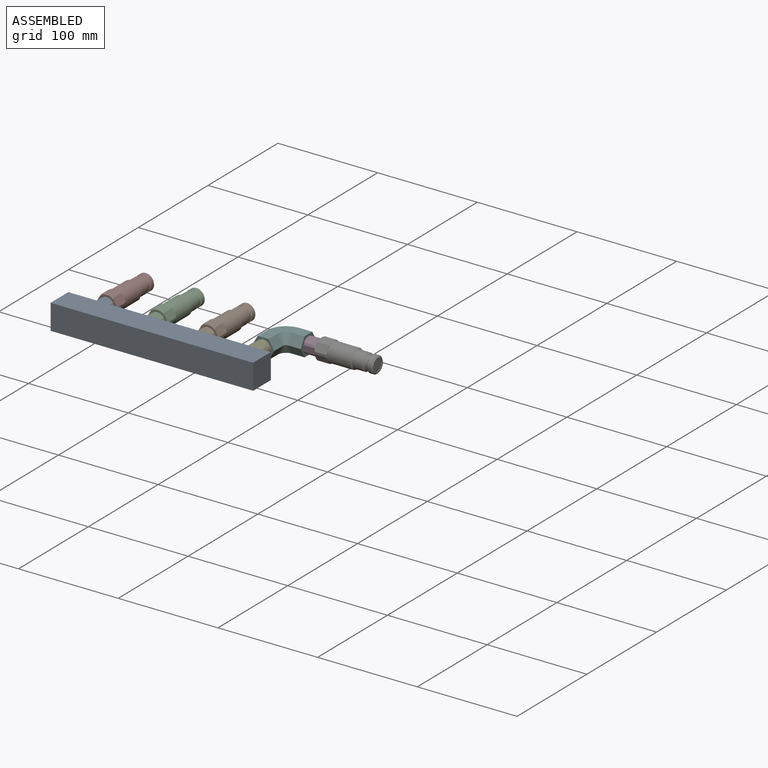
[diagram: assembled view]
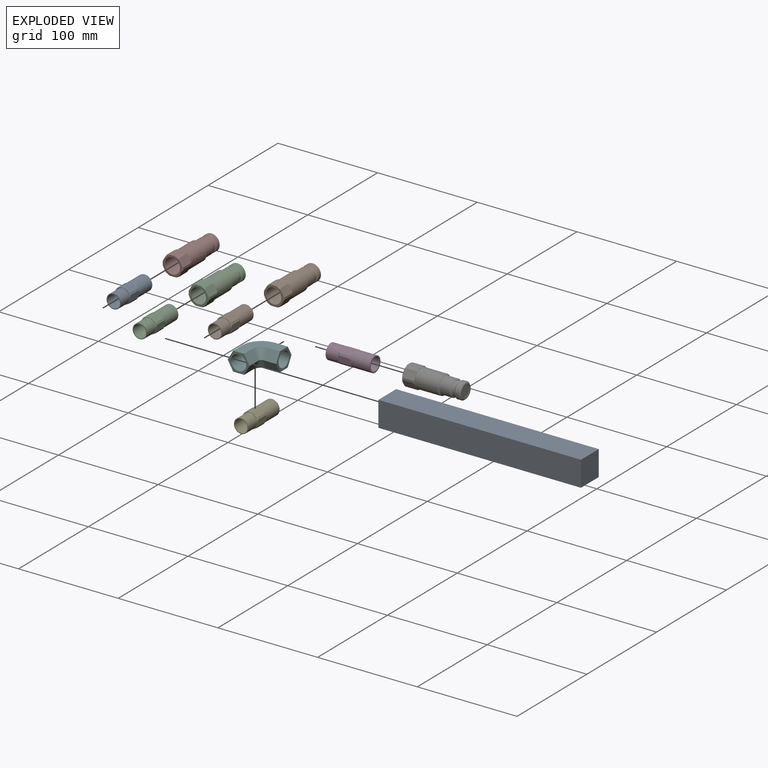
[diagram: exploded view]
GUIDED TOUR — MATED ASSEMBLY (Onshape document 58734178e3815217dc91f460, AutoMate assembly 58734178e3815217dc91f460_f798ebabe00ff8d9d65b1478_e7b1286801b83e364d495348_default)

This assembly has 11 components, labeled P0..P10 below (a component is one placed occurrence of a part; the same part can appear more than once), held together by 10 mates. A mate is a constraint between two components; its type names the relative motion it leaves free:
  FASTENED — locks the two components together rigidly (no relative motion).
Axis/direction vectors are unit vectors and 'through' points are millimeter coordinates, both in the assembly's world frame.

MATES
  1. FASTENED "Fastened 5": P2 <-> P10, direction (0.000, -1.000, 0.000) through (-95.49, 54.52, 36.64) mm
  2. FASTENED "Fastened 10": P6 <-> P3, direction (-1.000, 0.001, 0.000) through (64.54, 68.46, 36.64) mm
  3. FASTENED "Fastened 4": P1 <-> P9, direction (0.000, -1.000, 0.000) through (-44.69, 54.52, 36.64) mm
  4. FASTENED "Fastened 9": P3 <-> P5, direction (-1.000, 0.001, 0.000) through (20.09, 68.49, 36.64) mm
  5. FASTENED "Fastened 2": P10 <-> P8, direction (0.000, -1.000, 0.000) through (-95.49, 10.07, 36.64) mm
  6. FASTENED "Fastened 1": P0 <-> P8, direction (0.000, -1.000, 0.000) through (-146.29, 10.07, 36.64) mm
  7. FASTENED "Fastened 7": P8 <-> P4, direction (0.000, 1.000, 0.000) through (6.11, 10.07, 36.64) mm
  8. FASTENED "Fastened 3": P9 <-> P8, direction (0.000, -1.000, 0.000) through (-44.69, 10.07, 36.64) mm
  9. FASTENED "Fastened 8": P5 <-> P4, direction (0.000, -1.000, 0.000) through (6.11, 54.52, 36.64) mm
  10. FASTENED "Fastened 6": P7 <-> P0, direction (0.000, -1.000, 0.000) through (-146.29, 54.52, 36.64) mm

ASSEMBLY ORDER
  1. P10 — the base component [order heuristic]
  2. P0 — core [order heuristic]
  3. P9 — core [order heuristic]
  4. P1 — core [order heuristic]
  5. P2 — core [order heuristic]
  6. P7 — core [order heuristic]
  7. P3 — core [order heuristic]
  8. P5 [order verified]
  9. P6 — core [order heuristic]
  10. P4 [order verified]
  11. P8 [order verified]
Order-tag legend:
  [order verified] — this step's position reverses a verified removal order: the component was checked to insert without passing through the ones already placed.
  [order heuristic] — the first 8 components form the assembly's core: parts whose collision-free extraction could not be verified, listed in mate-graph order.

Of the 11 components, 1 carries the full construction recipe — the FeatureScript program that regenerates the part's solid from scratch; the rest are supplied as boundary geometry only.
Each toured component is shown spotlighted twice — in the assembled view, then in the exploded view, where a leader line traces a displaced component back to its assembled socket (saturated green if recipe-attached, orange if geometry-only; every other component desaturated gray) — followed by its recipe or geometry summary and the mates that hold it.
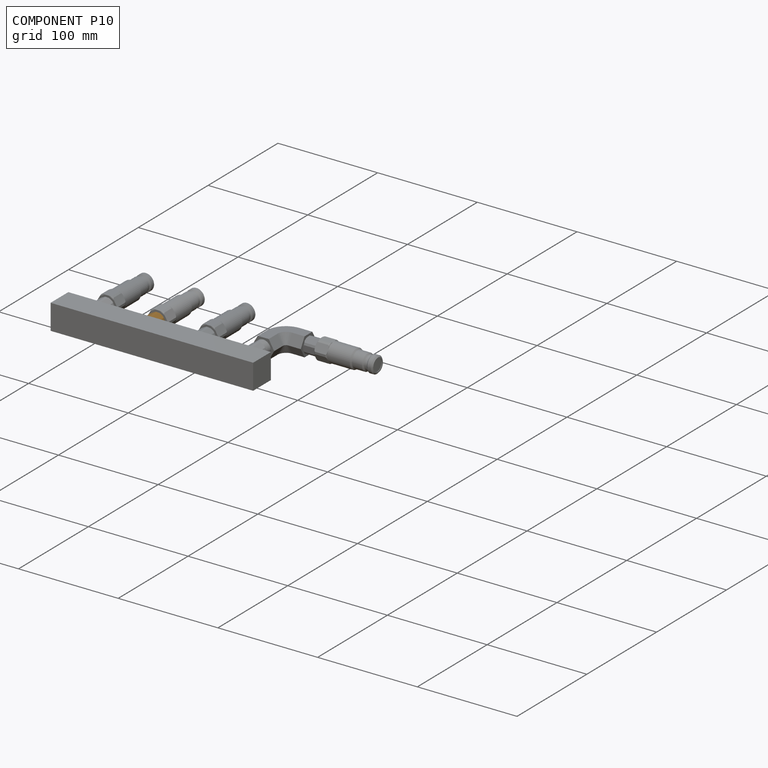
[diagram: component P10 — assembled]
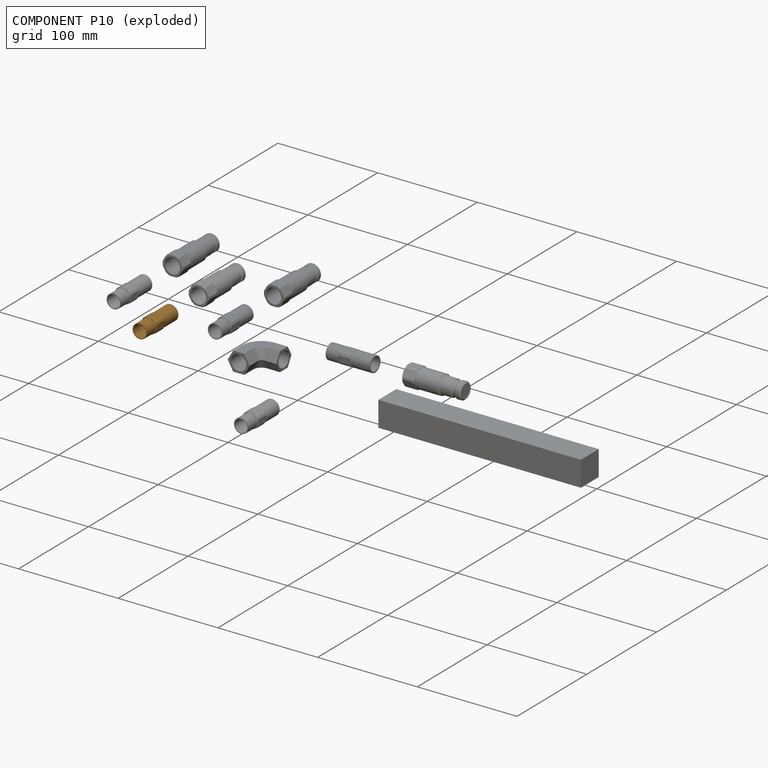
[diagram: component P10 — exploded]
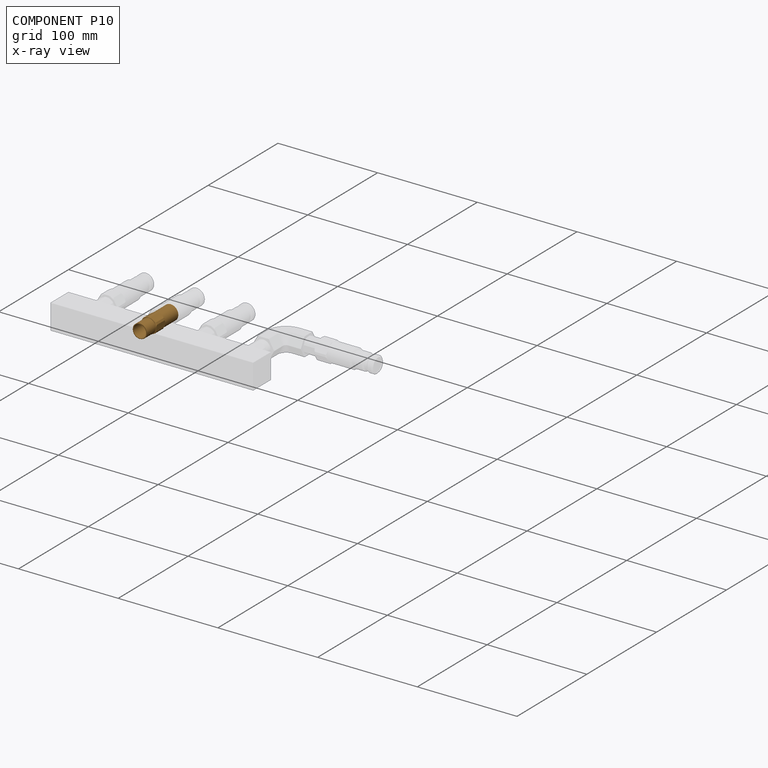
[diagram: component P10 — x-ray view]
COMPONENT P10 — geometry summary (no construction recipe available for this part):
  bounding box: 44.5 x 17.6 x 16.7 mm
  B-rep topology: 1 solid, 53 faces, 272 edges
  volume: 2369 mm^3 (18% of its bounding box)
  symmetry: 6-fold rotationally symmetric about the y axis
Held by: FASTENED mate "Fastened 5" to P2; FASTENED mate "Fastened 2" to P8.
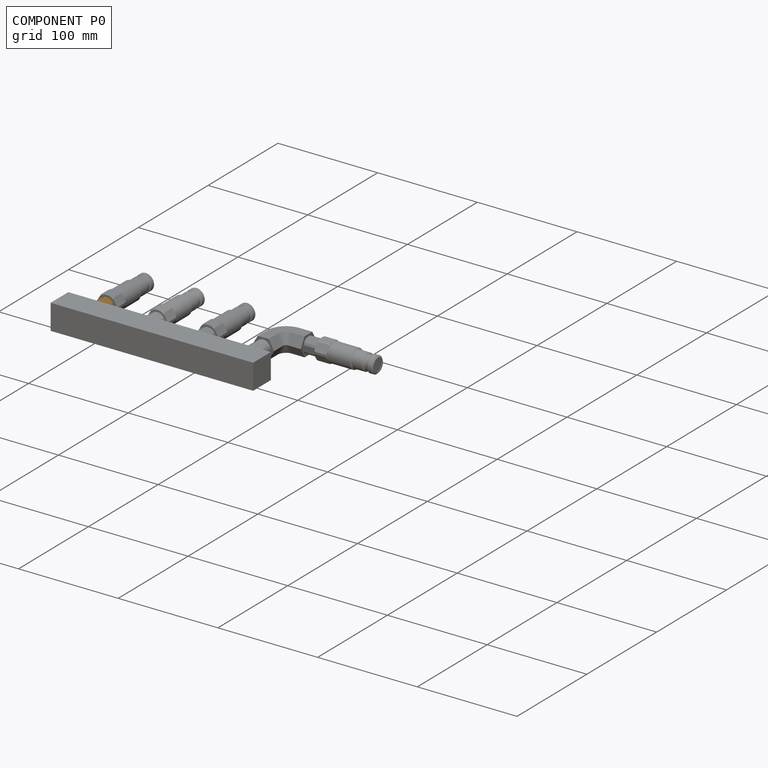
[diagram: component P0 — assembled]
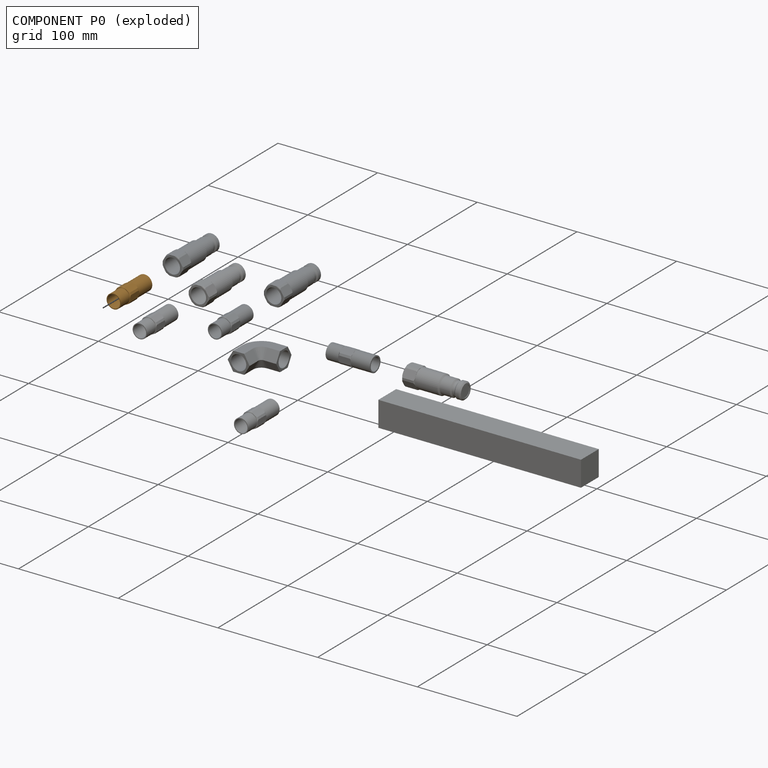
[diagram: component P0 — exploded]
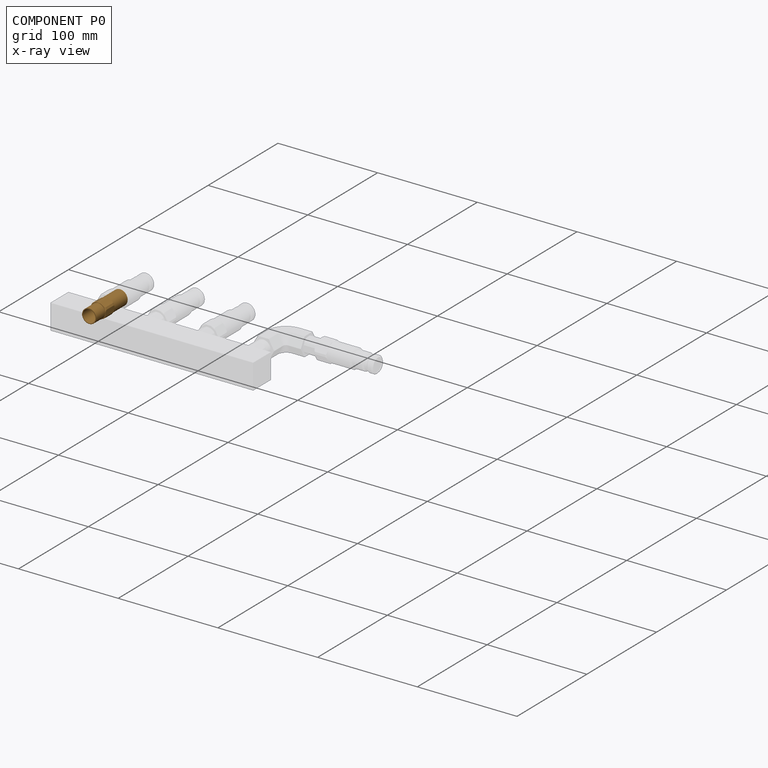
[diagram: component P0 — x-ray view]
COMPONENT P0 — geometry summary (no construction recipe available for this part):
  bounding box: 44.5 x 17.6 x 16.7 mm
  B-rep topology: 1 solid, 53 faces, 272 edges
  volume: 2369 mm^3 (18% of its bounding box)
  symmetry: 6-fold rotationally symmetric about the y axis
Held by: FASTENED mate "Fastened 1" to P8; FASTENED mate "Fastened 6" to P7.
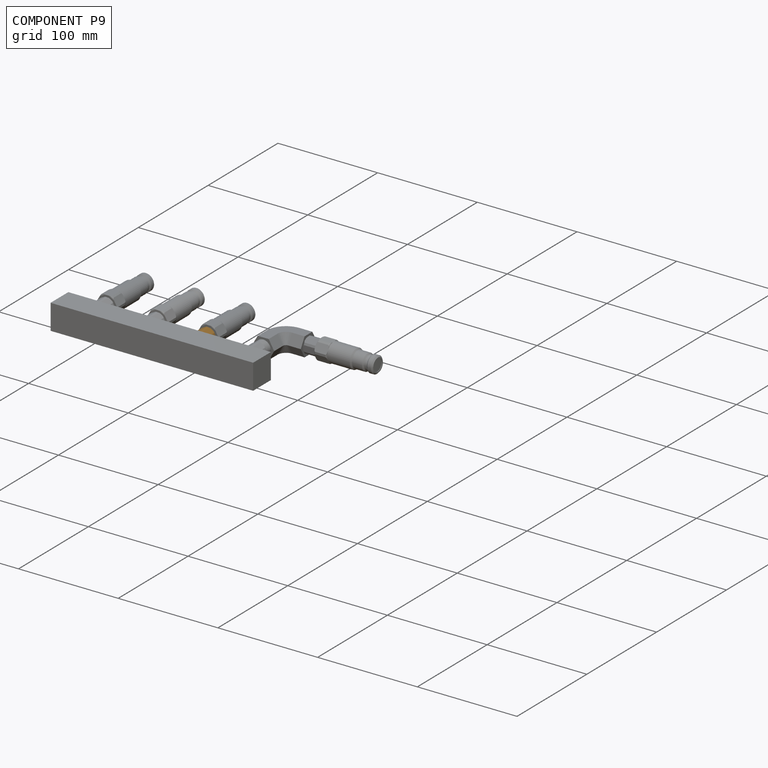
[diagram: component P9 — assembled]
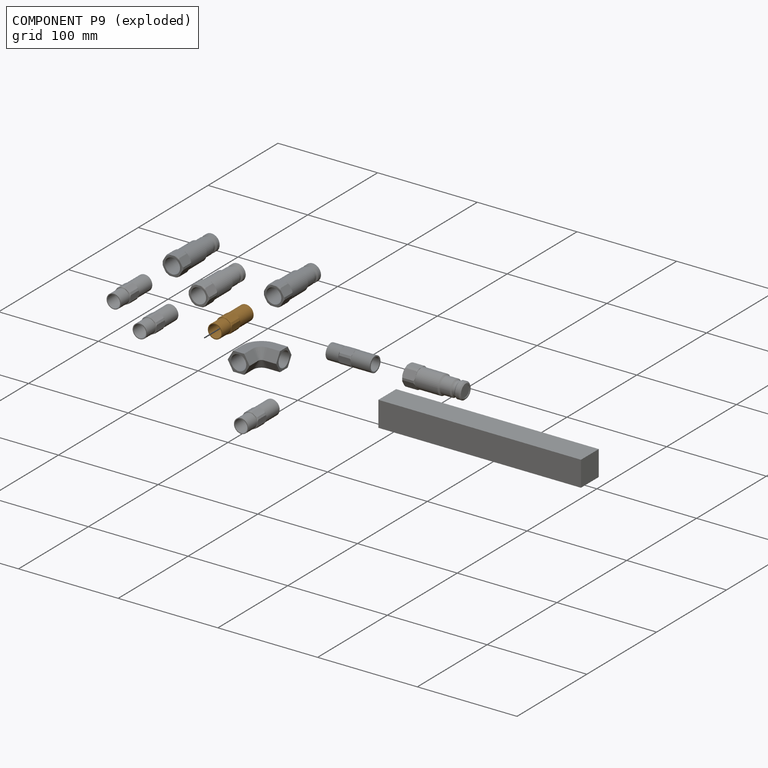
[diagram: component P9 — exploded]
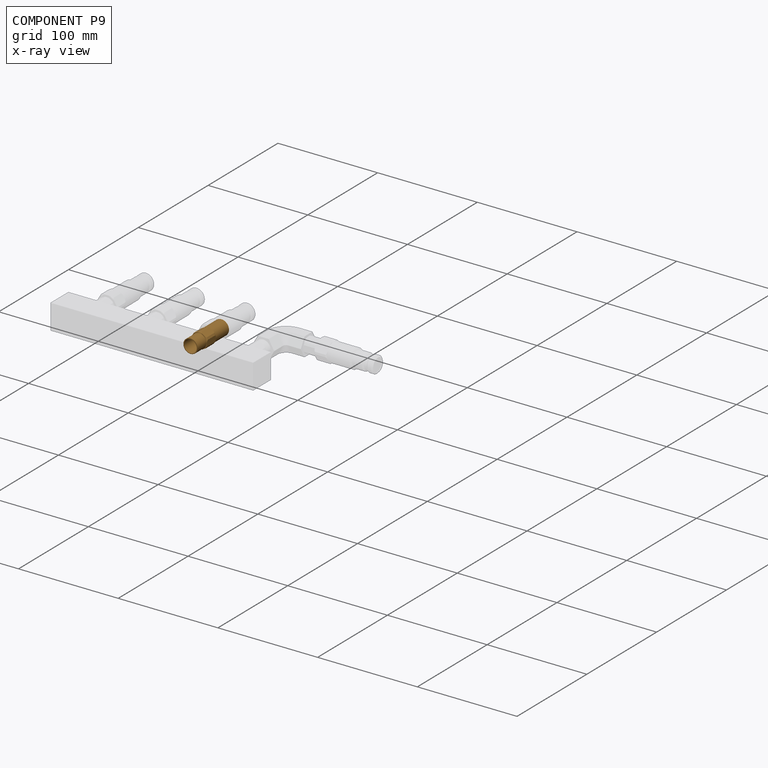
[diagram: component P9 — x-ray view]
COMPONENT P9 — geometry summary (no construction recipe available for this part):
  bounding box: 44.5 x 17.6 x 16.7 mm
  B-rep topology: 1 solid, 53 faces, 272 edges
  volume: 2369 mm^3 (18% of its bounding box)
  symmetry: 6-fold rotationally symmetric about the y axis
Held by: FASTENED mate "Fastened 4" to P1; FASTENED mate "Fastened 3" to P8.
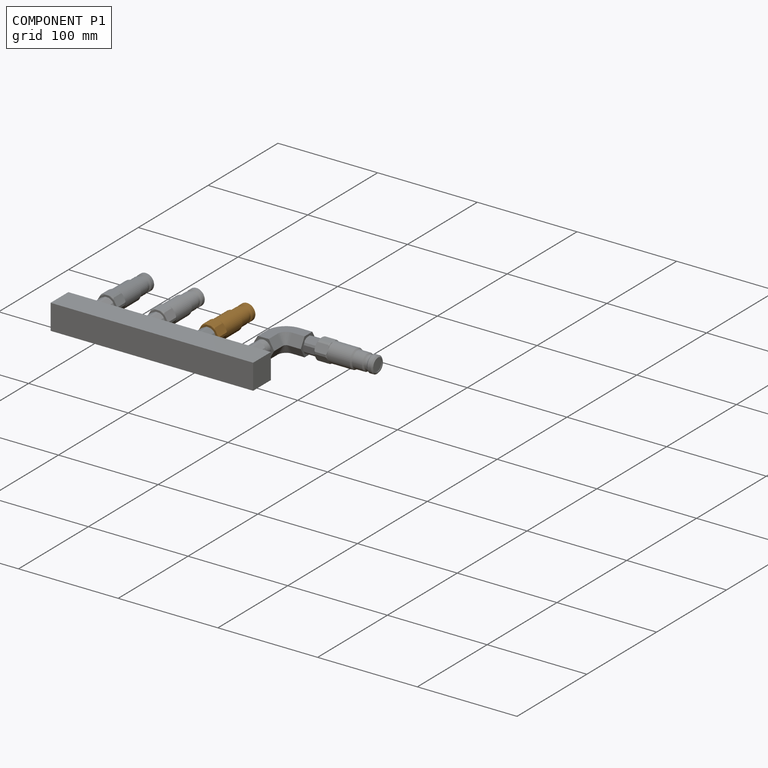
[diagram: component P1 — assembled]
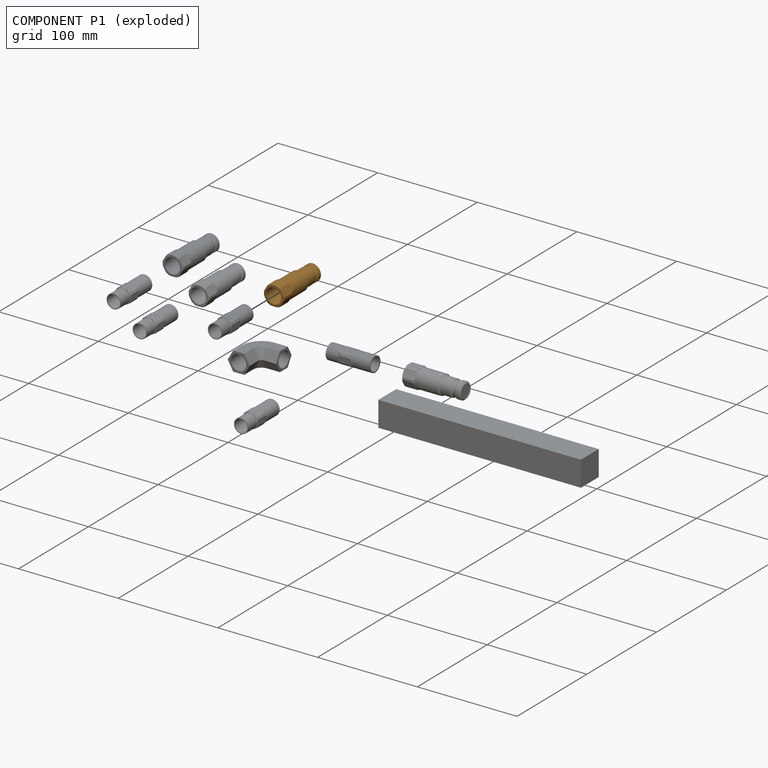
[diagram: component P1 — exploded]
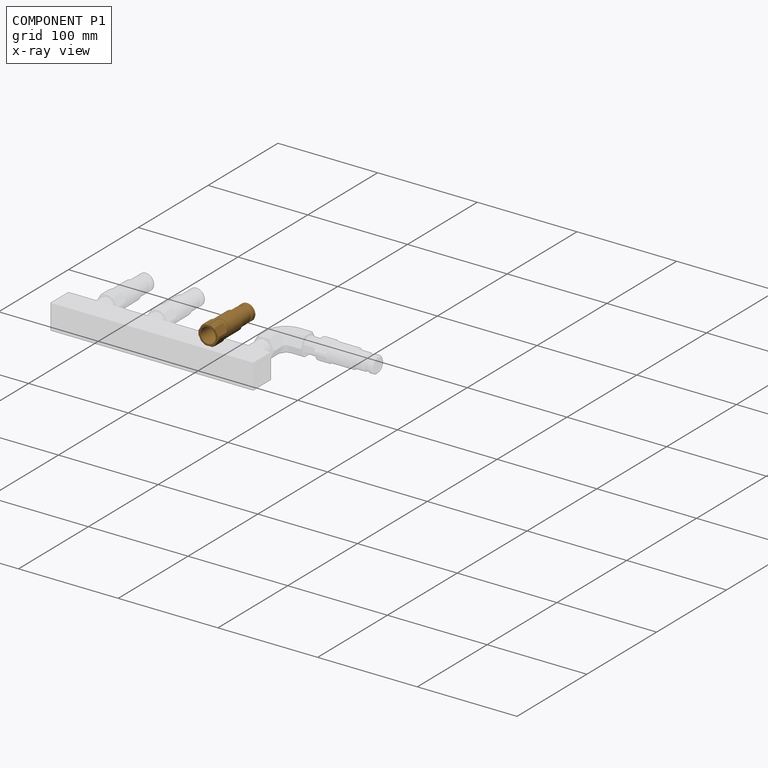
[diagram: component P1 — x-ray view]
COMPONENT P1 — geometry summary (no construction recipe available for this part):
  bounding box: 57.2 x 21.2 x 20.7 mm
  B-rep topology: 1 solid, 50 faces, 256 edges
  volume: 11306 mm^3 (45% of its bounding box)
  symmetry: 6-fold rotationally symmetric about the y axis; mirror-symmetric across its x mid-plane, z mid-plane
Held by: FASTENED mate "Fastened 4" to P9.
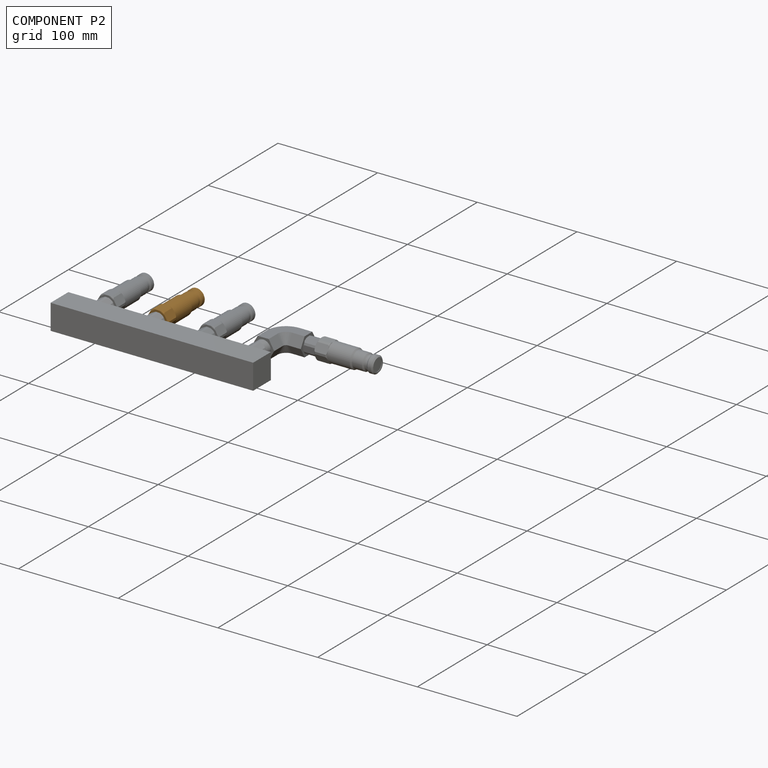
[diagram: component P2 — assembled]
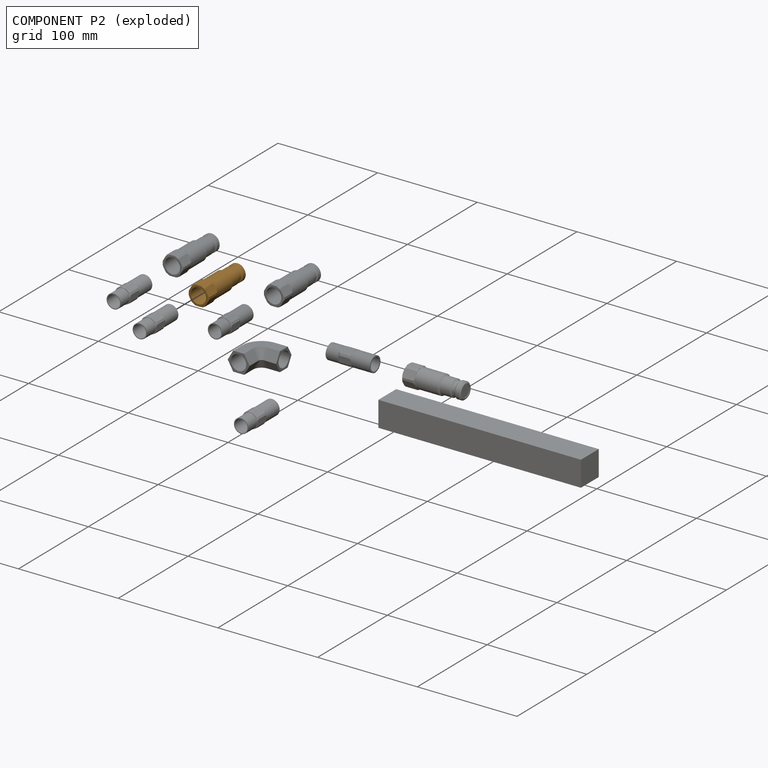
[diagram: component P2 — exploded]
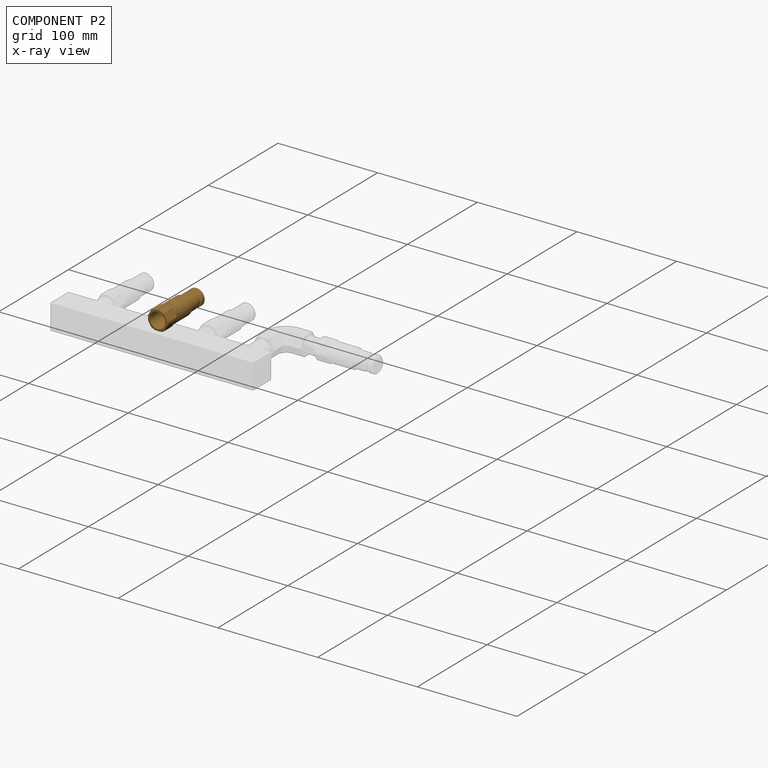
[diagram: component P2 — x-ray view]
COMPONENT P2 — geometry summary (no construction recipe available for this part):
  bounding box: 57.2 x 21.2 x 20.7 mm
  B-rep topology: 1 solid, 50 faces, 256 edges
  volume: 11306 mm^3 (45% of its bounding box)
  symmetry: 6-fold rotationally symmetric about the y axis; mirror-symmetric across its x mid-plane, z mid-plane
Held by: FASTENED mate "Fastened 5" to P10.
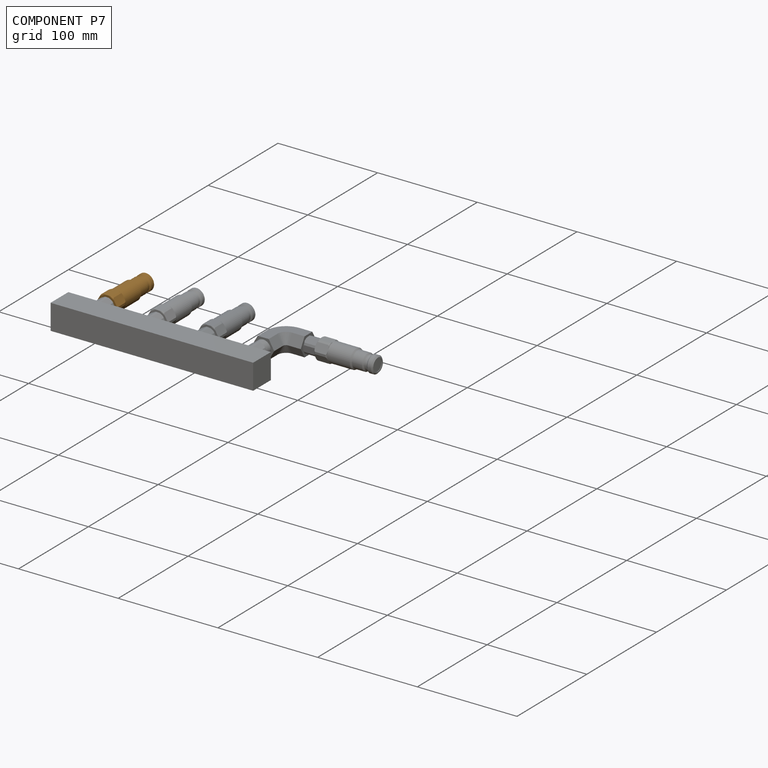
[diagram: component P7 — assembled]
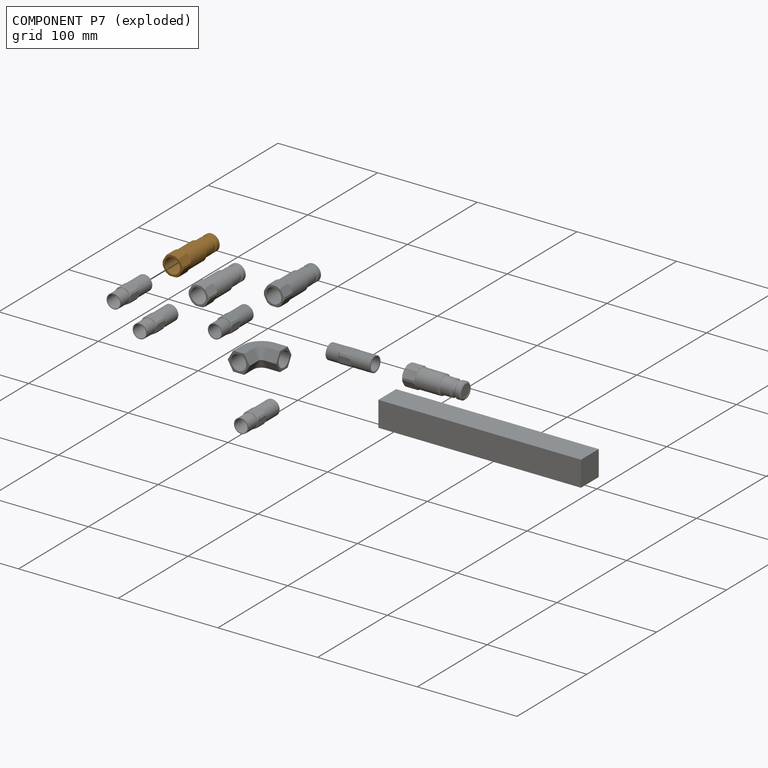
[diagram: component P7 — exploded]
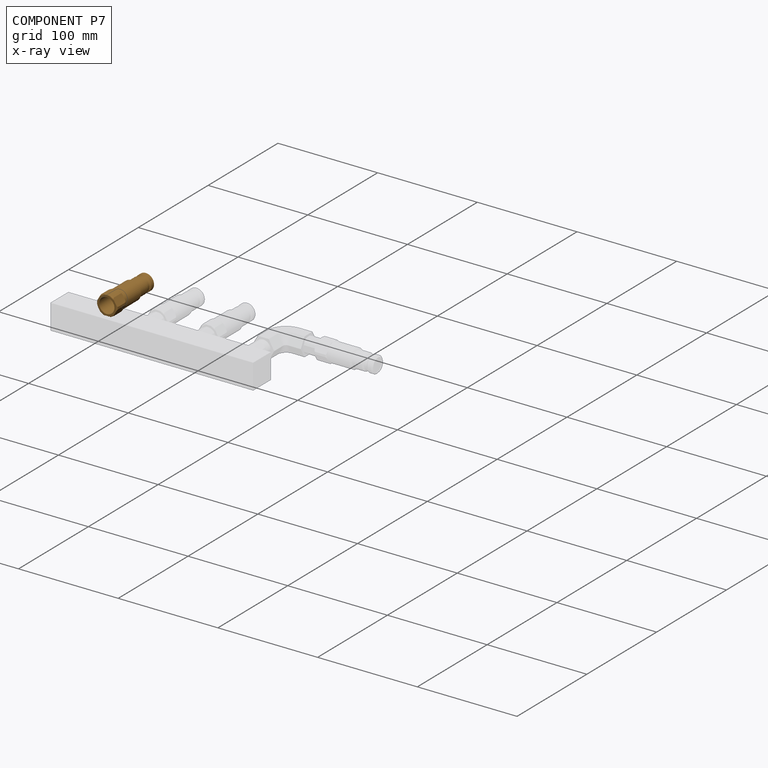
[diagram: component P7 — x-ray view]
COMPONENT P7 — geometry summary (no construction recipe available for this part):
  bounding box: 57.2 x 21.2 x 20.7 mm
  B-rep topology: 1 solid, 50 faces, 256 edges
  volume: 11306 mm^3 (45% of its bounding box)
  symmetry: 6-fold rotationally symmetric about the y axis; mirror-symmetric across its x mid-plane, z mid-plane
Held by: FASTENED mate "Fastened 6" to P0.
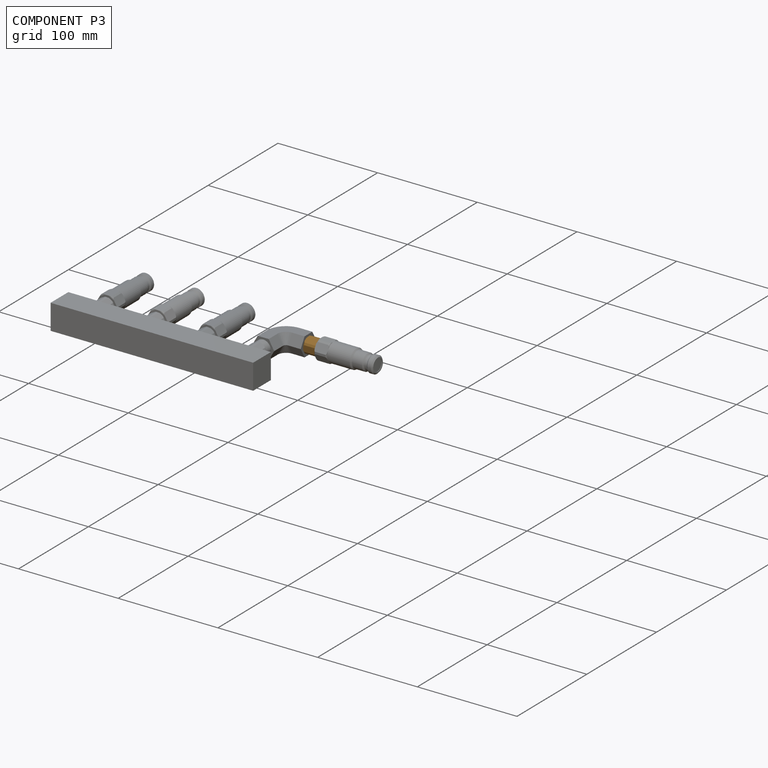
[diagram: component P3 — assembled]
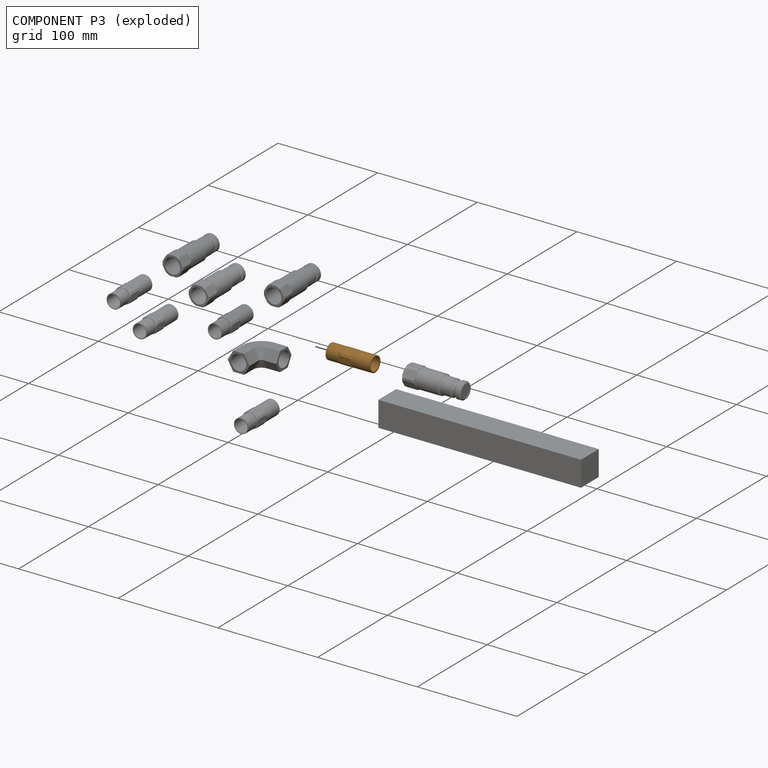
[diagram: component P3 — exploded]
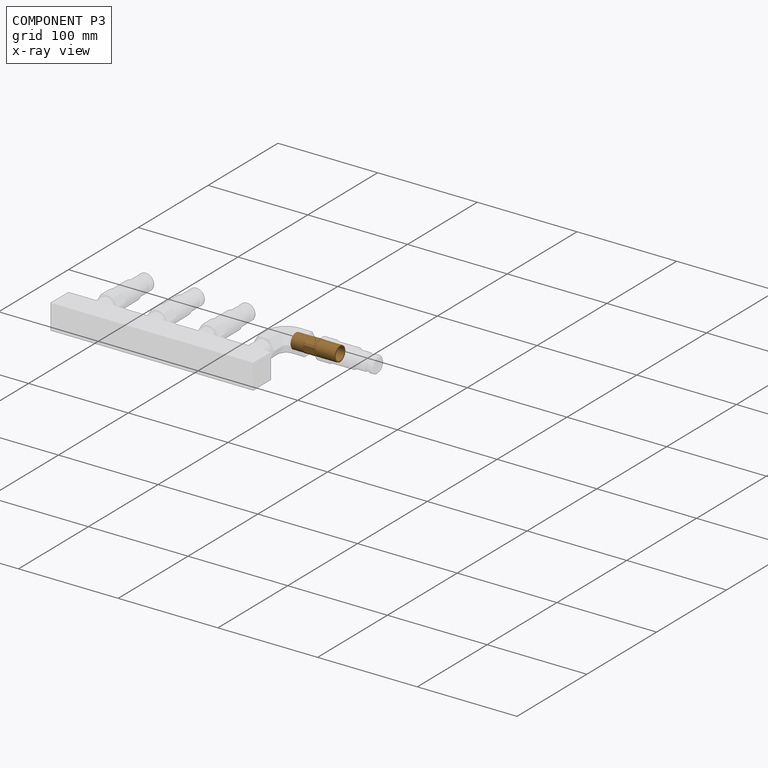
[diagram: component P3 — x-ray view]
COMPONENT P3 — geometry summary (no construction recipe available for this part):
  bounding box: 44.5 x 17.6 x 16.7 mm
  B-rep topology: 1 solid, 59 faces, 296 edges
  volume: 2650 mm^3 (20% of its bounding box)
  symmetry: 6-fold rotationally symmetric about the y axis
Held by: FASTENED mate "Fastened 10" to P6; FASTENED mate "Fastened 9" to P5.
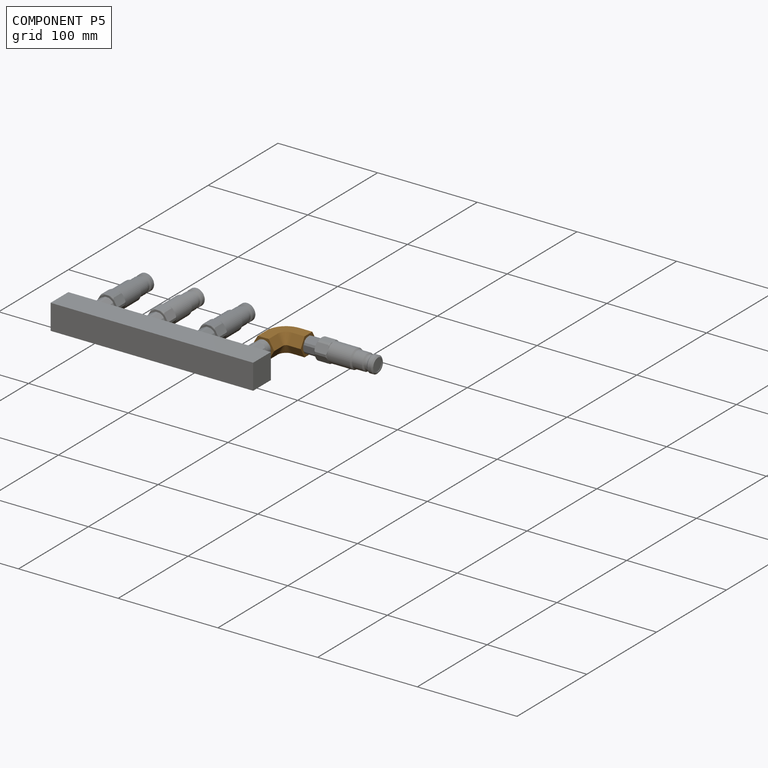
[diagram: component P5 — assembled]
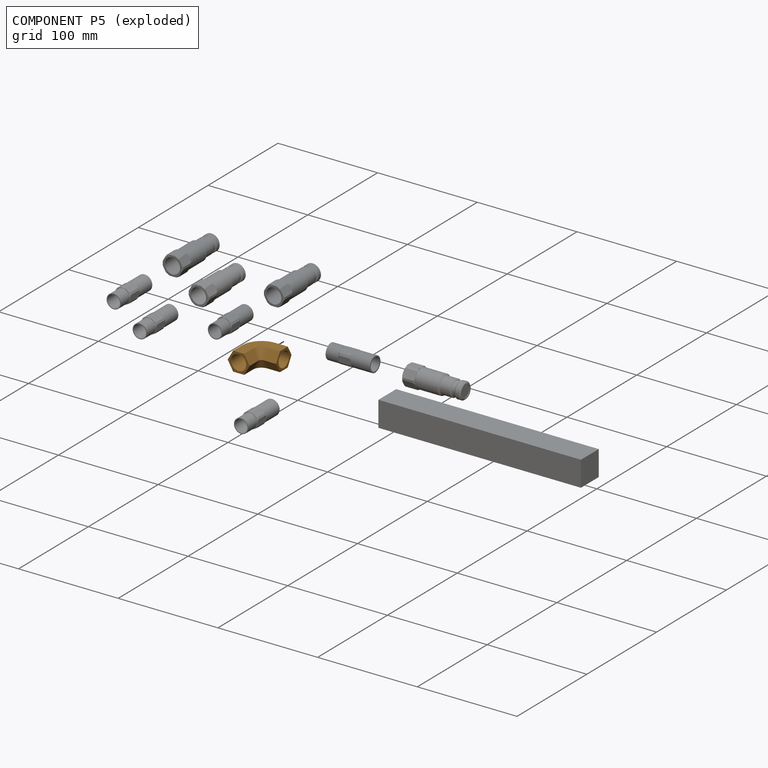
[diagram: component P5 — exploded]
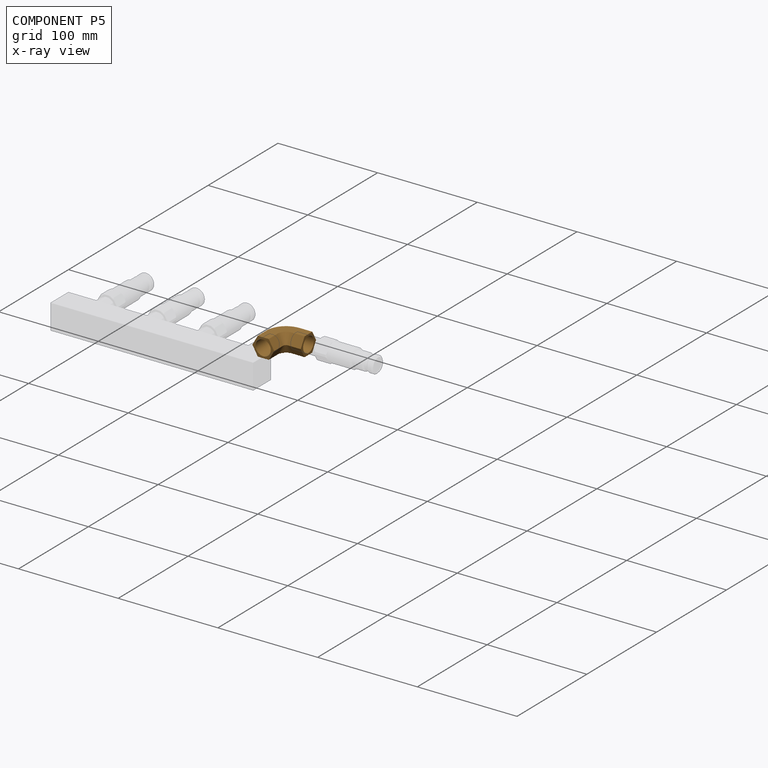
[diagram: component P5 — x-ray view]
COMPONENT P5 — geometry summary (no construction recipe available for this part):
  bounding box: 37.7 x 37.7 x 19.1 mm
  B-rep topology: 1 solid, 19 faces, 90 edges
  volume: 6245 mm^3 (23% of its bounding box)
  symmetry: mirror-symmetric across its z mid-plane
Held by: FASTENED mate "Fastened 9" to P3; FASTENED mate "Fastened 8" to P4.
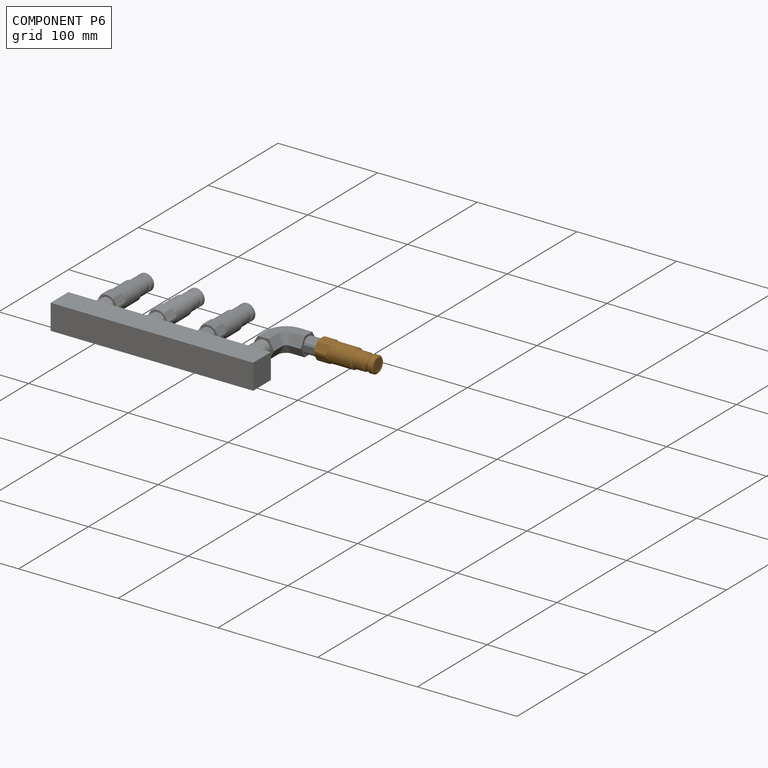
[diagram: component P6 — assembled]
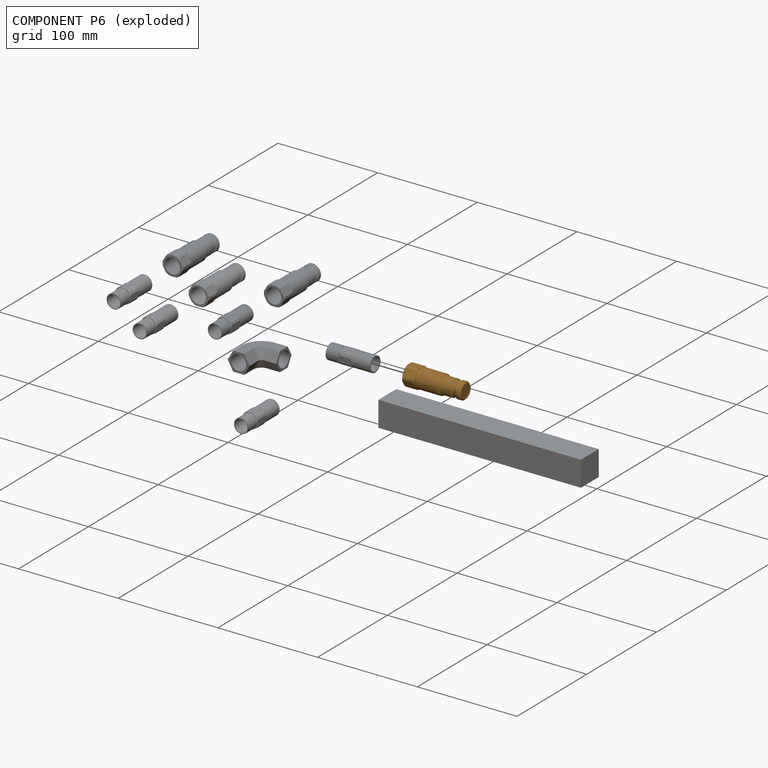
[diagram: component P6 — exploded]
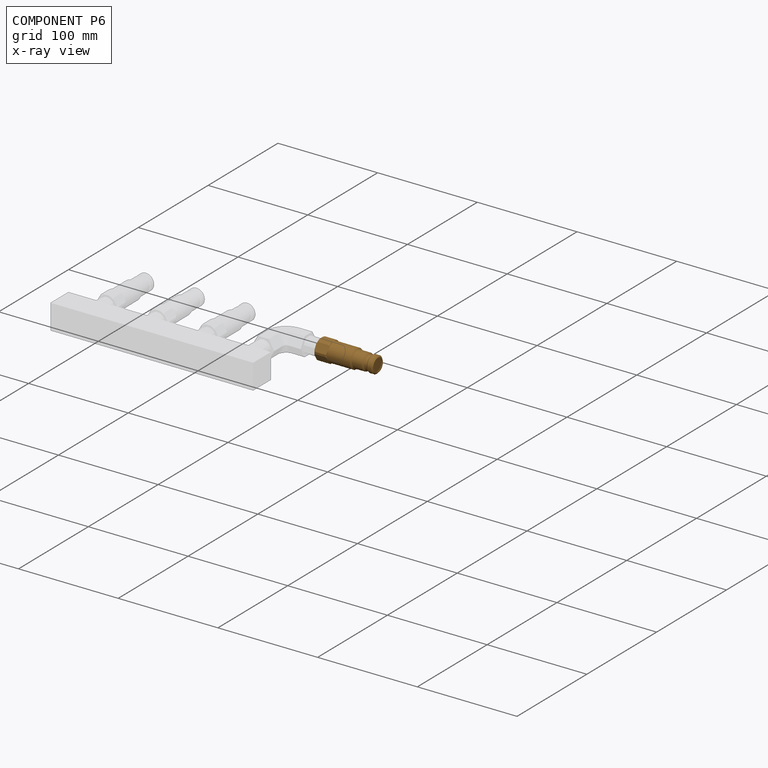
[diagram: component P6 — x-ray view]
COMPONENT P6 — geometry summary (no construction recipe available for this part):
  bounding box: 57.2 x 21.2 x 20.7 mm
  B-rep topology: 1 solid, 50 faces, 256 edges
  volume: 11306 mm^3 (45% of its bounding box)
  symmetry: 6-fold rotationally symmetric about the y axis; mirror-symmetric across its x mid-plane, z mid-plane
Held by: FASTENED mate "Fastened 10" to P3.
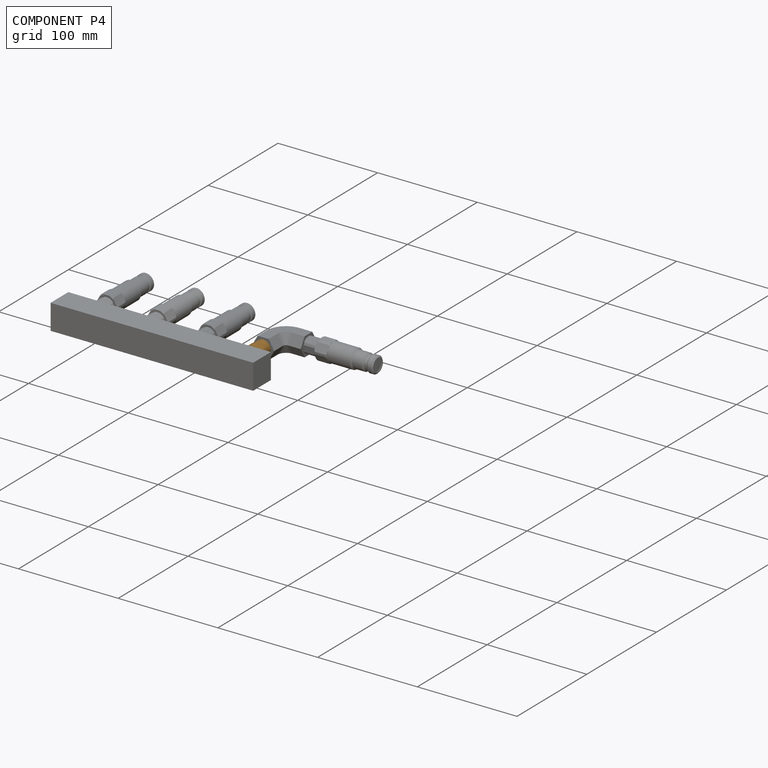
[diagram: component P4 — assembled]
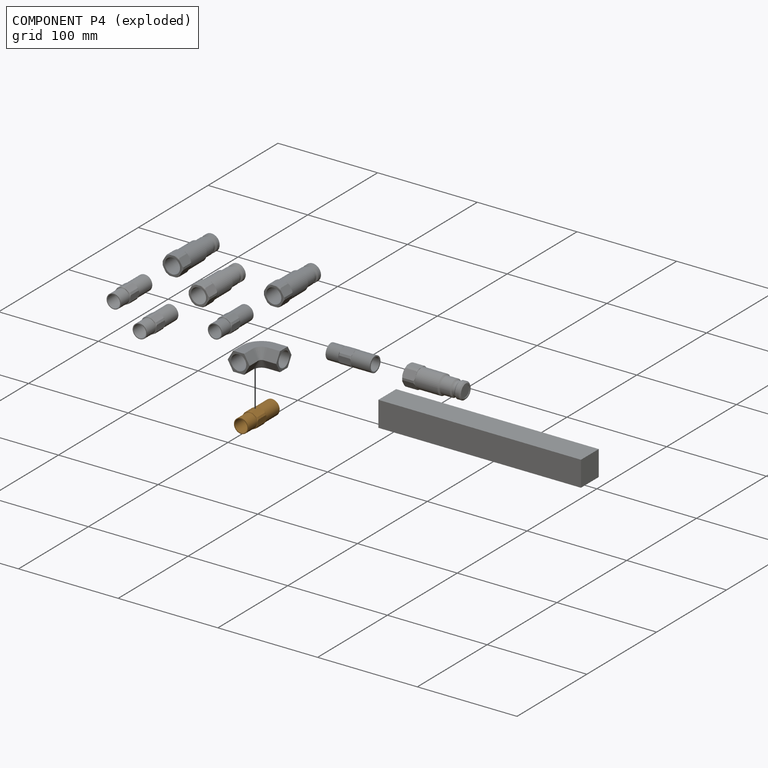
[diagram: component P4 — exploded]
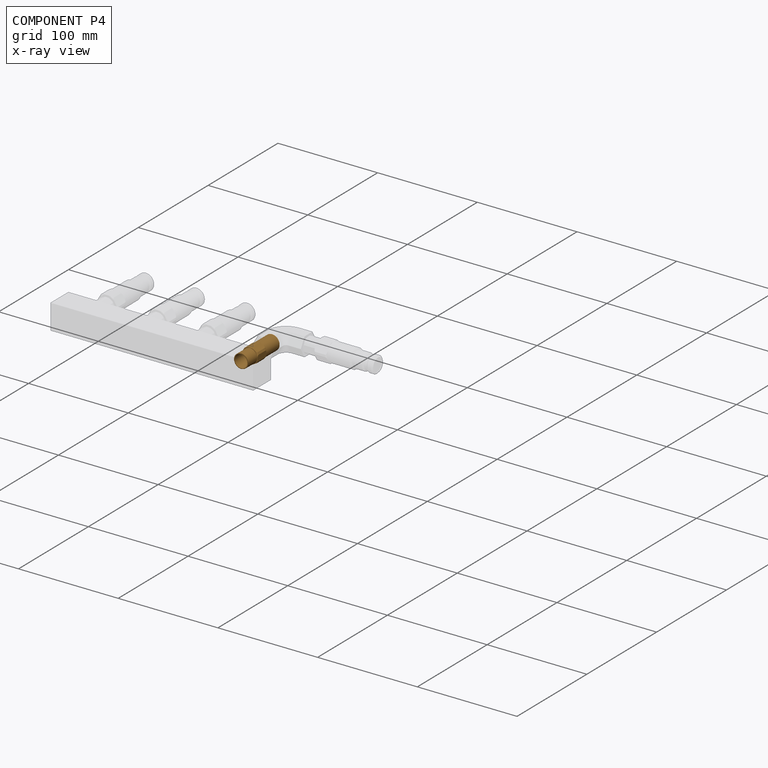
[diagram: component P4 — x-ray view]
COMPONENT P4 — geometry summary (no construction recipe available for this part):
  bounding box: 44.5 x 17.6 x 16.7 mm
  B-rep topology: 1 solid, 53 faces, 272 edges
  volume: 2369 mm^3 (18% of its bounding box)
  symmetry: 6-fold rotationally symmetric about the y axis
Held by: FASTENED mate "Fastened 7" to P8; FASTENED mate "Fastened 8" to P5.
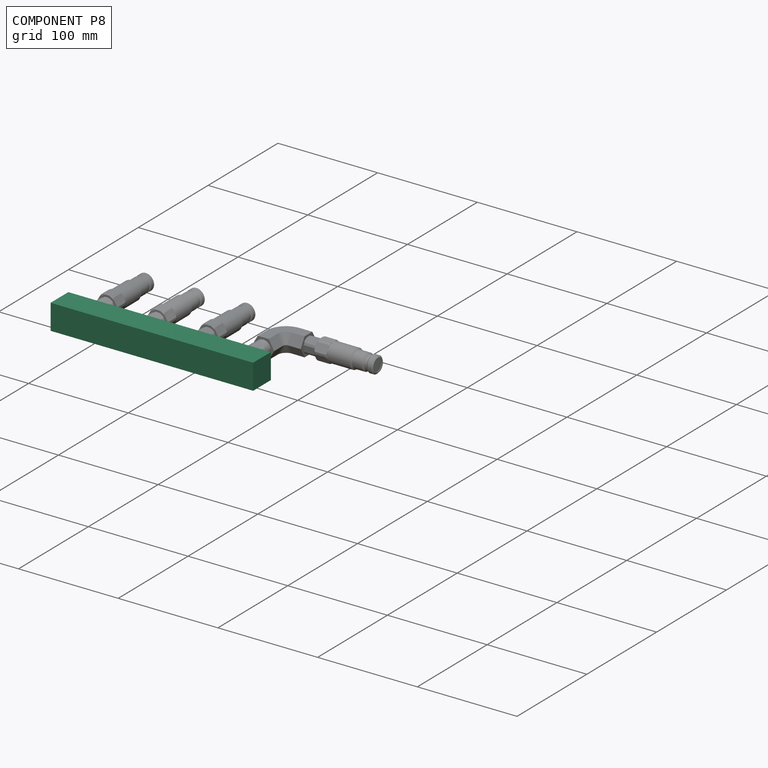
[diagram: component P8 — assembled]
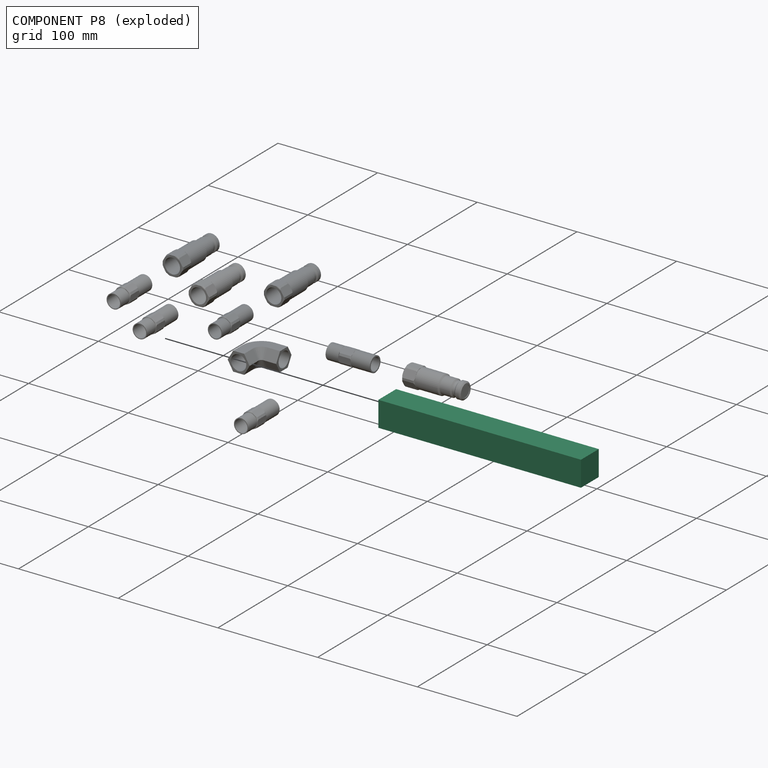
[diagram: component P8 — exploded]
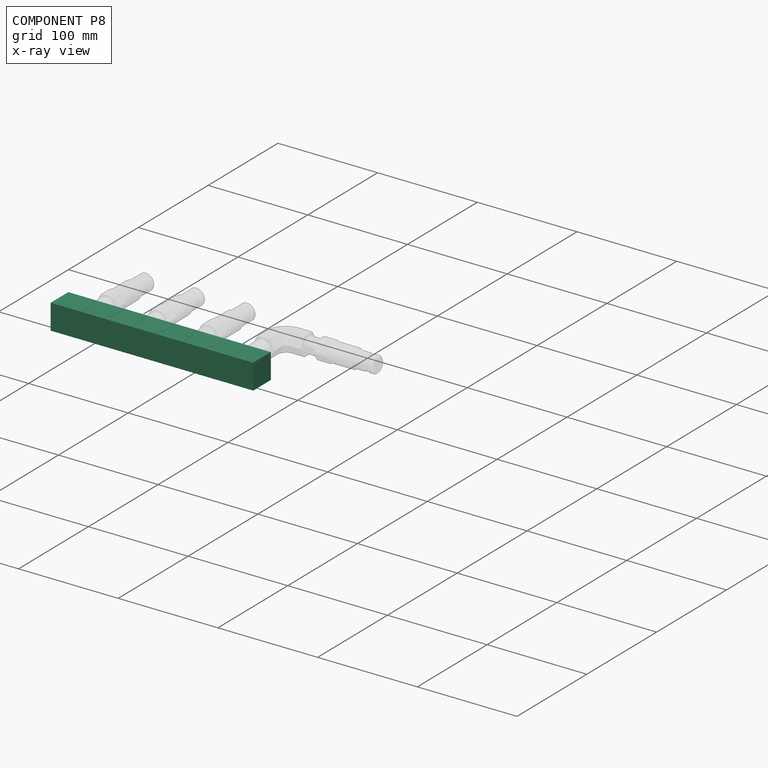
[diagram: component P8 — x-ray view]
COMPONENT P8 — recipe-attached (CADFS 00433589, mesh-verified: the recipe's output STEP matches this component's geometry to below the mesh-comparison resolution (tessellation chordal tolerance ~0.31 mm)).
Held by: FASTENED mate "Fastened 2" to P10; FASTENED mate "Fastened 1" to P0; FASTENED mate "Fastened 7" to P4; FASTENED mate "Fastened 3" to P9.
Construction recipe (FeatureScript — the CAD program that rebuilds this solid; sketch coordinates are in the units given by the * unit suffixes, e.g. mm):

FeatureScript 1511;
import(path : "onshape/std/geometry.fs", version : "1511.0");
import(path : "onshape/std/common.fs", version : "1511.0");
const mm = millimeter;
const VERTEX = EntityType.VERTEX;
const EDGE = EntityType.EDGE;
const FACE = EntityType.FACE;
const BODY = EntityType.BODY;
function v(x, y){return vector(x, y);}
function OD(order){return orderDisambiguation(order);}
function OSD(set){return originalSetDisambiguation(set);}
function TD(topology){return topologyDisambiguation(topology);}
function TDD(query){return trueDependencyDisambiguation(query);}
function sQuery(a, b, c) {return sketchEntityQuery(a, b, c);}

annotation { "Feature Type Name" : "Feature", "Feature Type Description" : "" }
export const myFeature = defineFeature(function(context is Context, id is Id, definition is map)
    precondition{}
    {
        {
            var Q0;
            Q0=qCreatedBy(makeId("Front.planeOp"),FACE);
            var sketch = newSketch(context, id + "F0", { "sketchPlane" : qUnion([Q0])});
            skLineSegment(sketch, "E0.bottom", {"start": v(-101.6, 12.7) * mm, "end": v(101.6, 12.7) * mm});
            skLineSegment(sketch, "E0.top", {"start": v(-101.6, -12.7) * mm, "end": v(101.6, -12.7) * mm});
            skLineSegment(sketch, "E0.left", {"start": v(-101.6, 12.7) * mm, "end": v(-101.6, -12.7) * mm});
            skLineSegment(sketch, "E0.right", {"start": v(101.6, 12.7) * mm, "end": v(101.6, -12.7) * mm});
            skPoint(sketch, "E0.middle", {"position": v(0, 0) * mm});
            skSolve(sketch);
        }
        {
            var Q0;
            Q0=makeQuery(id+"F0.imprint","IMPRINT",FACE,{"disambiguationData":[TD([[makeQuery(id+"F0.imprint","IMPRINT",EDGE,{"derivedFrom":sQuery(id+"F0.wireOp",EDGE,"E0.bottom")}),-1.0]])]});
            extrude(context, id + "F1", {"entities" : qUnion([Q0]), "depth" : 25.4 * mm});
        }
        {
            var Q0;
            Q0=makeQuery(id+"F1.opExtrude","CAP_FACE",FACE,{"disambiguationData":[OSD([sQuery(id+"F0.wireOp",EDGE,"E0.bottom"),sQuery(id+"F0.wireOp",EDGE,"E0.top"),sQuery(id+"F0.wireOp",EDGE,"E0.left"),sQuery(id+"F0.wireOp",EDGE,"E0.right")])],"isStart":false});
            var sketch = newSketch(context, id + "F2", { "sketchPlane" : qUnion([Q0])});
            skCircle(sketch, "E1", {"center": v(-76.2, 0) * mm, "radius": 7.14 * mm});
            skCircle(sketch, "E2", {"center": v(-25.4, 0) * mm, "radius": 7.14 * mm});
            skCircle(sketch, "E3", {"center": v(25.4, 0) * mm, "radius": 7.14 * mm});
            skCircle(sketch, "E4", {"center": v(76.2, 0) * mm, "radius": 7.14 * mm});
            skSolve(sketch);
        }
        {
            var Q0;
            Q0=makeQuery(id+"F1.opExtrude","SWEPT_FACE",FACE,{"disambiguationData":[OSD([sQuery(id+"F0.wireOp",EDGE,"E0.right")])]});
            var sketch = newSketch(context, id + "F3", { "sketchPlane" : qUnion([Q0])});
            skCircle(sketch, "E5", {"center": v(-12.7, 0) * mm, "radius": 9.53 * mm});
            skPoint(sketch, "E5.centerSnap0", {"position": v(-12.7, 12.7) * mm});
            skSolve(sketch);
        }
        {
            var Q0;
            Q0=makeQuery(id+"F3.imprint","IMPRINT",FACE,{"disambiguationData":[TD([[makeQuery(id+"F3.imprint","IMPRINT",EDGE,{"derivedFrom":sQuery(id+"F3.wireOp",EDGE,"E5")}),1.0]])]});
            extrude(context, id + "F4", {"entities" : qUnion([Q0]), "operationType" : NewBodyOperationType.REMOVE, "oppositeDirection" : true, "depth" : 190.5 * mm});
        }
        {
            var Q0;
            Q0=makeQuery(id+"F1.opExtrude","SWEPT_FACE",FACE,{"disambiguationData":[OSD([sQuery(id+"F0.wireOp",EDGE,"E0.right")])]});
            var sketch = newSketch(context, id + "F5", { "sketchPlane" : qUnion([Q0])});
            skCircle(sketch, "E6", {"center": v(-12.7, 0) * mm, "radius": 9.53 * mm});
            skSolve(sketch);
        }
        {
            var Q0;
            Q0=makeQuery(id+"F5.imprint","IMPRINT",FACE,{"disambiguationData":[TD([[makeQuery(id+"F5.imprint","IMPRINT",EDGE,{"derivedFrom":sQuery(id+"F5.wireOp",EDGE,"E6")}),1.0]])]});
            extrude(context, id + "F6", {"entities" : qUnion([Q0]), "operationType" : NewBodyOperationType.ADD, "oppositeDirection" : true, "depth" : 12.7 * mm});
        }
        {
            var Q0;
            Q0=makeQuery(id+"F2.imprint","IMPRINT",FACE,{"disambiguationData":[TD([[makeQuery(id+"F2.imprint","IMPRINT",EDGE,{"derivedFrom":sQuery(id+"F2.wireOp",EDGE,"E1")}),1.0]])]});
            var Q1;
            Q1=makeQuery(id+"F2.imprint","IMPRINT",FACE,{"disambiguationData":[TD([[makeQuery(id+"F2.imprint","IMPRINT",EDGE,{"derivedFrom":sQuery(id+"F2.wireOp",EDGE,"E2")}),1.0]])]});
            var Q2;
            Q2=makeQuery(id+"F2.imprint","IMPRINT",FACE,{"disambiguationData":[TD([[makeQuery(id+"F2.imprint","IMPRINT",EDGE,{"derivedFrom":sQuery(id+"F2.wireOp",EDGE,"E3")}),1.0]])]});
            var Q3;
            Q3=makeQuery(id+"F2.imprint","IMPRINT",FACE,{"disambiguationData":[TD([[makeQuery(id+"F2.imprint","IMPRINT",EDGE,{"derivedFrom":sQuery(id+"F2.wireOp",EDGE,"E4")}),1.0]])]});
            extrude(context, id + "F7", {"entities" : qUnion([Q0, Q1, Q2, Q3]), "operationType" : NewBodyOperationType.REMOVE, "oppositeDirection" : true, "depth" : 19.05 * mm});
        }
    });
PROVENANCE & LICENSES
Assembly (occurrences, transforms, mates, per-part STEP geometry): AutoMate dataset, Zenodo record 7776208, CC0.
Construction recipes: CADFS (HuggingFace VladPyatov/CADFS, CC-BY-4.0, layered over the ABC dataset), FeatureScript reconstruction programs keyed by ABC model id.
Join: ABC meta listings map ABC model id -> Onshape documentId; within a shared document, parts are matched by geometric signature (bounding-box dims + volume at 0.1% relative tolerance, exact B-rep face/solid counts).
Verification: 1 of this assembly's 11 components carries a recipe attachment, and every attachment is mesh-verified: the CADFS STEP and the AutoMate member STEP were compared as meshes in their shared local frame (symmetric sampled-point-to-mesh distance); worst across the 1 attachment: below the mesh-comparison resolution (tessellation chordal tolerance ~0.31 mm) on a 206 mm part.
Renders: orthographic iso camera (az 35 / el 25); the floor grid conveys scale (grid pitch printed in each image; no ruler). In the exploded view each component is displaced by its stored offset vector: the offsets alone carry the explosion direction (mate normal/axis signs are not orientation cues and do not encode it), and separation distances are assigned per mate-chain, not proportionally to assembly-order depth.
